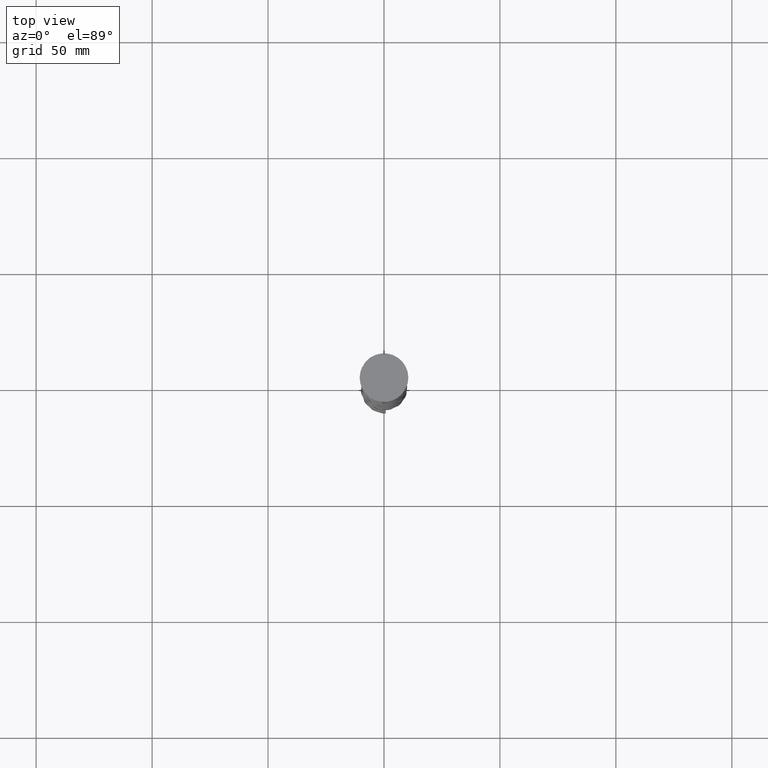
[diagram: clean part render]
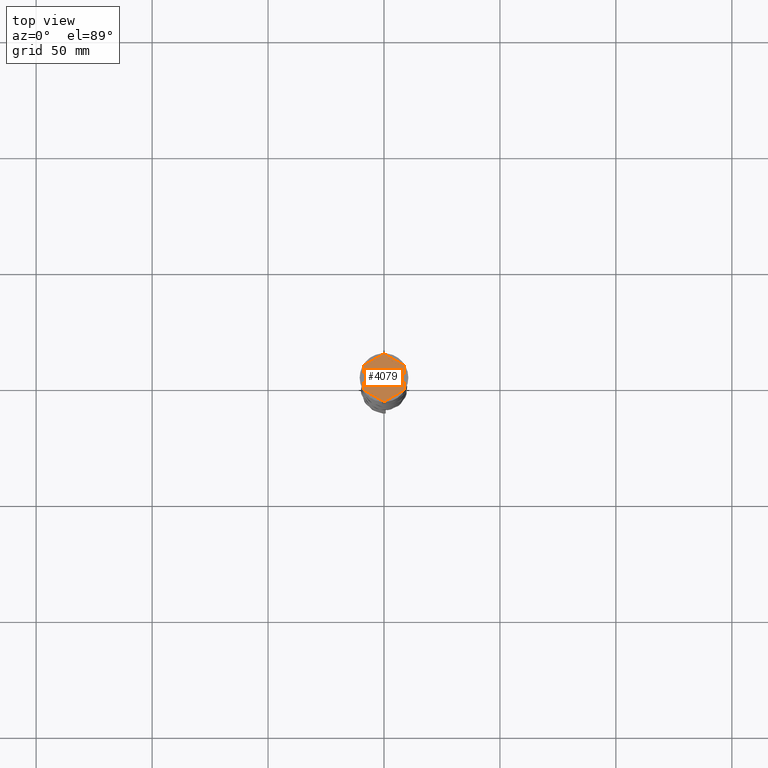
[diagram: same view with one face highlighted and labeled with its STEP entity id]
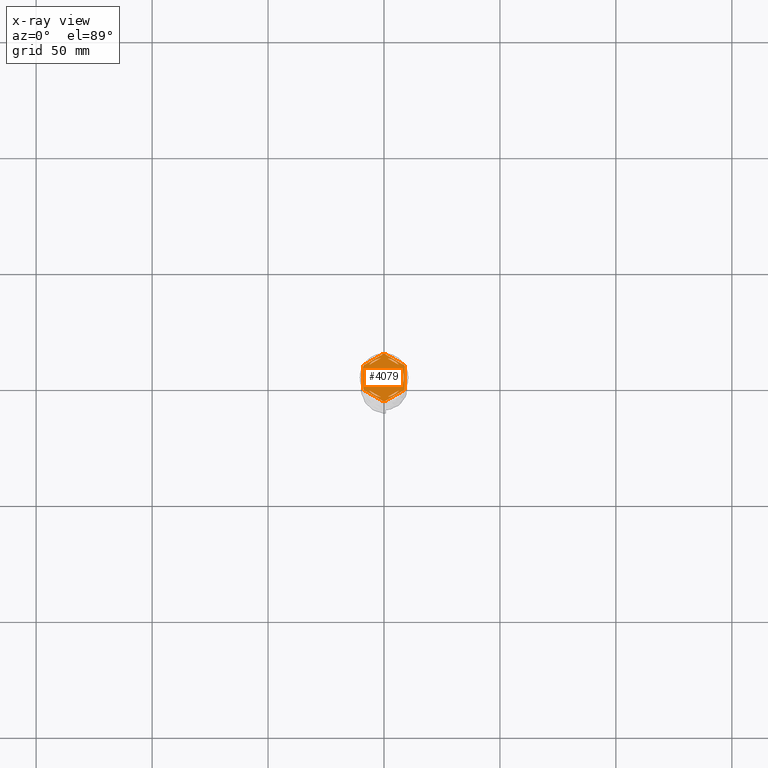
[diagram: x-ray of the same camera — body ghosted, the highlighted face saturated]
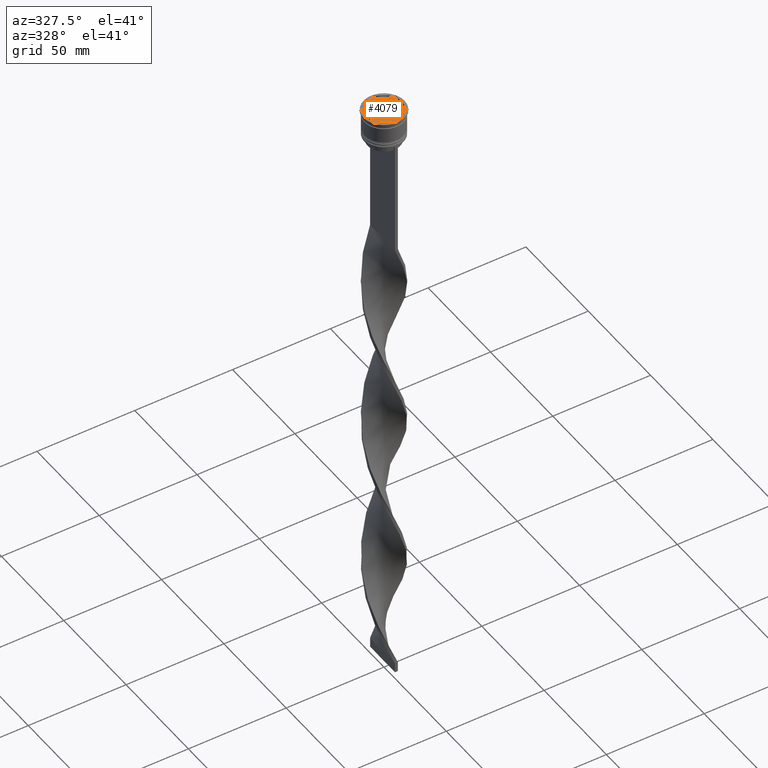
[diagram: same view with one face highlighted and labeled with its STEP entity id]
A machine part, top view. The second image highlights one B-rep face of the part: STEP entity #4079.
The next image is the same camera in x-ray: the body ghosted, the highlighted face saturated — about 0% of this face is hidden behind the body in this view.
A second angle (auxiliary view) of the same face is appended — the face is thin or edge-on in the first view.
In plain terms, the highlighted planar face has unit normal (0, 0, 1).
Its self-contained STEP definition (entity closure, byte-faithful):
#21 = ORIENTED_EDGE ( 'NONE', *, *, #1350, .F. ) ;
#24 = DIRECTION ( 'NONE',  ( -0.8660254037844385966, -0.5000000000000001110, 0.000000000000000000 ) ) ;
#26 = ORIENTED_EDGE ( 'NONE', *, *, #697, .F. ) ;
#60 = AXIS2_PLACEMENT_3D ( 'NONE', #3711, #1331, #3034 ) ;
#91 = DIRECTION ( 'NONE',  ( -0.000000000000000000, -0.000000000000000000, -1.000000000000000000 ) ) ;
#121 = FACE_BOUND ( 'NONE', #2989, .T. ) ;
#135 = VERTEX_POINT ( 'NONE', #1233 ) ;
#139 = CIRCLE ( 'NONE', #1285, 10.19999999999999574 ) ;
#163 = ORIENTED_EDGE ( 'NONE', *, *, #886, .F. ) ;
#171 = VERTEX_POINT ( 'NONE', #4133 ) ;
#228 = CARTESIAN_POINT ( 'NONE',  ( -6.487468592766552078, -5.492062568641001619, -1.000000000000000888 ) ) ;
#241 = CARTESIAN_POINT ( 'NONE',  ( 0.000000000000000000, 0.000000000000000000, -1.000000000000000000 ) ) ;
#244 = DIRECTION ( 'NONE',  ( -0.000000000000000000, -0.000000000000000000, -1.000000000000000000 ) ) ;
#248 = ORIENTED_EDGE ( 'NONE', *, *, #1683, .F. ) ;
#310 = VERTEX_POINT ( 'NONE', #4266 ) ;
#343 = DIRECTION ( 'NONE',  ( -0.8660254037844385966, 0.4999999999999999445, 0.000000000000000000 ) ) ;
#354 = VERTEX_POINT ( 'NONE', #2980 ) ;
#403 = CIRCLE ( 'NONE', #3729, 10.19999999999999574 ) ;
#405 = CARTESIAN_POINT ( 'NONE',  ( 6.487468592766552078, 5.492062568641001619, -1.000000000000000888 ) ) ;
#426 = EDGE_LOOP ( 'NONE', ( #2476, #26, #3744, #4236, #693, #2137, #2241, #3814, #1522, #3776, #2859, #3353 ) ) ;
#438 = CARTESIAN_POINT ( 'NONE',  ( 2.607697573705103160E-15, -10.39230484541326405, -1.000000000000000000 ) ) ;
#444 = DIRECTION ( 'NONE',  ( 0.8660254037844385966, -0.4999999999999999445, 0.000000000000000000 ) ) ;
#472 = LINE ( 'NONE', #4080, #3864 ) ;
#519 = CARTESIAN_POINT ( 'NONE',  ( 0.000000000000000000, 0.000000000000000000, -1.000000000000000000 ) ) ;
#520 = EDGE_LOOP ( 'NONE', ( #2803, #3248, #248 ) ) ;
#527 = EDGE_CURVE ( 'NONE', #871, #556, #4274, .T. ) ;
#556 = VERTEX_POINT ( 'NONE', #3700 ) ;
#560 = DIRECTION ( 'NONE',  ( 0.000000000000000000, 0.000000000000000000, 1.000000000000000000 ) ) ;
#609 = VERTEX_POINT ( 'NONE', #405 ) ;
#639 = CARTESIAN_POINT ( 'NONE',  ( -8.656921938165295316, -5.394228634059957450, -1.000000000000000000 ) ) ;
#641 = CARTESIAN_POINT ( 'NONE',  ( -8.000000000000000000, -4.618802153517006737, -1.000000000000000888 ) ) ;
#693 = ORIENTED_EDGE ( 'NONE', *, *, #2814, .T. ) ;
#697 = EDGE_CURVE ( 'NONE', #3857, #2795, #3229, .T. ) ;
#707 = VERTEX_POINT ( 'NONE', #3457 ) ;
#723 = CARTESIAN_POINT ( 'NONE',  ( 7.999999999999998224, -4.618802153517008513, -1.000000000000000888 ) ) ;
#729 = CARTESIAN_POINT ( 'NONE',  ( 8.000000000000000000, 4.618802153517006737, -1.000000000000000888 ) ) ;
#732 = VERTEX_POINT ( 'NONE', #1157 ) ;
#743 = VECTOR ( 'NONE', #444, 1000.000000000000114 ) ;
#746 = LINE ( 'NONE', #1083, #3008 ) ;
#769 = CARTESIAN_POINT ( 'NONE',  ( 8.673617379884035472E-16, 9.237604307034013473, -1.000000000000000888 ) ) ;
#778 = CARTESIAN_POINT ( 'NONE',  ( 0.000000000000000000, 0.000000000000000000, -1.000000000000000000 ) ) ;
#792 = ORIENTED_EDGE ( 'NONE', *, *, #2624, .F. ) ;
#809 = FACE_OUTER_BOUND ( 'NONE', #426, .T. ) ;
#844 = DIRECTION ( 'NONE',  ( -0.000000000000000000, -0.000000000000000000, -1.000000000000000000 ) ) ;
#871 = VERTEX_POINT ( 'NONE', #1403 ) ;
#886 = EDGE_CURVE ( 'NONE', #3006, #609, #2079, .T. ) ;
#890 = CARTESIAN_POINT ( 'NONE',  ( 6.487468592766547637, -5.492062568641006060, -1.000000000000000888 ) ) ;
#899 = CARTESIAN_POINT ( 'NONE',  ( 0.000000000000000000, 0.000000000000000000, -1.000000000000000000 ) ) ;
#911 = EDGE_CURVE ( 'NONE', #3598, #871, #4129, .T. ) ;
#959 = DIRECTION ( 'NONE',  ( 0.000000000000000000, 1.000000000000000000, 0.000000000000000000 ) ) ;
#1017 = EDGE_CURVE ( 'NONE', #707, #354, #3024, .T. ) ;
#1059 = DIRECTION ( 'NONE',  ( 0.000000000000000000, 0.000000000000000000, 1.000000000000000000 ) ) ;
#1061 = VECTOR ( 'NONE', #3062, 1000.000000000000000 ) ;
#1063 = EDGE_CURVE ( 'NONE', #2377, #2563, #3635, .T. ) ;
#1073 = CARTESIAN_POINT ( 'NONE',  ( 0.000000000000000000, 0.000000000000000000, -1.000000000000000000 ) ) ;
#1083 = CARTESIAN_POINT ( 'NONE',  ( -9.000000000000001776, 5.196152422706632024, -1.000000000000000000 ) ) ;
#1096 = DIRECTION ( 'NONE',  ( 1.000000000000000000, 0.000000000000000000, 0.000000000000000000 ) ) ;
#1097 = DIRECTION ( 'NONE',  ( -0.000000000000000000, -0.000000000000000000, -1.000000000000000000 ) ) ;
#1110 = DIRECTION ( 'NONE',  ( 0.000000000000000000, 0.000000000000000000, 1.000000000000000000 ) ) ;
#1125 = FACE_BOUND ( 'NONE', #1428, .T. ) ;
#1127 = DIRECTION ( 'NONE',  ( -0.8660254037844385966, 0.5000000000000000000, 0.000000000000000000 ) ) ;
#1138 = CARTESIAN_POINT ( 'NONE',  ( -9.000000000000001776, -5.196152422706632912, -1.000000000000000000 ) ) ;
#1148 = VECTOR ( 'NONE', #343, 1000.000000000000114 ) ;
#1157 = CARTESIAN_POINT ( 'NONE',  ( 1.512531407233452363, -8.364343891910017703, -1.000000000000000888 ) ) ;
#1188 = DIRECTION ( 'NONE',  ( 0.000000000000000000, 0.000000000000000000, 1.000000000000000000 ) ) ;
#1190 = CIRCLE ( 'NONE', #1667, 10.19999999999999574 ) ;
#1193 = VECTOR ( 'NONE', #959, 1000.000000000000000 ) ;
#1211 = VERTEX_POINT ( 'NONE', #2668 ) ;
#1233 = CARTESIAN_POINT ( 'NONE',  ( -8.656921938165297092, 5.394228634059953009, -1.000000000000000000 ) ) ;
#1285 = AXIS2_PLACEMENT_3D ( 'NONE', #1751, #844, #3099 ) ;
#1331 = DIRECTION ( 'NONE',  ( 0.000000000000000000, 0.000000000000000000, 1.000000000000000000 ) ) ;
#1350 = EDGE_CURVE ( 'NONE', #732, #2622, #2185, .T. ) ;
#1367 = CARTESIAN_POINT ( 'NONE',  ( 9.000000000000001776, 4.799999999999988276, -1.000000000000000000 ) ) ;
#1370 = ORIENTED_EDGE ( 'NONE', *, *, #3564, .F. ) ;
#1372 = EDGE_CURVE ( 'NONE', #3857, #354, #1503, .T. ) ;
#1374 = VERTEX_POINT ( 'NONE', #3141 ) ;
#1382 = DIRECTION ( 'NONE',  ( 1.000000000000000000, 0.000000000000000000, 0.000000000000000000 ) ) ;
#1391 = DIRECTION ( 'NONE',  ( 0.8660254037844387076, -0.4999999999999997224, 0.000000000000000000 ) ) ;
#1392 = CIRCLE ( 'NONE', #3835, 8.500000000000000000 ) ;
#1398 = LINE ( 'NONE', #438, #1865 ) ;
#1403 = CARTESIAN_POINT ( 'NONE',  ( -8.000000000000000000, 2.872281323269016085, -1.000000000000000888 ) ) ;
#1416 = AXIS2_PLACEMENT_3D ( 'NONE', #2140, #3805, #2466 ) ;
#1419 = FACE_BOUND ( 'NONE', #3599, .T. ) ;
#1425 = CARTESIAN_POINT ( 'NONE',  ( 0.000000000000000000, 0.000000000000000000, -1.000000000000000000 ) ) ;
#1428 = EDGE_LOOP ( 'NONE', ( #3070, #163 ) ) ;
#1441 = DIRECTION ( 'NONE',  ( 1.000000000000000000, 0.000000000000000000, 0.000000000000000000 ) ) ;
#1461 = CIRCLE ( 'NONE', #4109, 8.500000000000000000 ) ;
#1486 = VECTOR ( 'NONE', #1127, 1000.000000000000227 ) ;
#1503 = LINE ( 'NONE', #3119, #1486 ) ;
#1509 = DIRECTION ( 'NONE',  ( 0.000000000000000000, 0.000000000000000000, 1.000000000000000000 ) ) ;
#1517 = CARTESIAN_POINT ( 'NONE',  ( -1.512531407233448366, -8.364343891910017703, -1.000000000000000888 ) ) ;
#1522 = ORIENTED_EDGE ( 'NONE', *, *, #1925, .T. ) ;
#1525 = ORIENTED_EDGE ( 'NONE', *, *, #3535, .F. ) ;
#1589 = CARTESIAN_POINT ( 'NONE',  ( -9.000000000000001776, 4.799999999999988276, -1.000000000000000000 ) ) ;
#1667 = AXIS2_PLACEMENT_3D ( 'NONE', #778, #3833, #1096 ) ;
#1683 = EDGE_CURVE ( 'NONE', #556, #3598, #3792, .T. ) ;
#1717 = LINE ( 'NONE', #769, #2367 ) ;
#1736 = DIRECTION ( 'NONE',  ( 0.8660254037844385966, 0.5000000000000001110, 0.000000000000000000 ) ) ;
#1745 = CARTESIAN_POINT ( 'NONE',  ( 8.656921938165297092, -5.394228634059953009, -1.000000000000000000 ) ) ;
#1749 = CARTESIAN_POINT ( 'NONE',  ( 1.512531407233448366, 8.364343891910017703, -1.000000000000000888 ) ) ;
#1751 = CARTESIAN_POINT ( 'NONE',  ( 0.000000000000000000, 0.000000000000000000, -1.000000000000000000 ) ) ;
#1820 = AXIS2_PLACEMENT_3D ( 'NONE', #3072, #91, #2445 ) ;
#1865 = VECTOR ( 'NONE', #1736, 1000.000000000000000 ) ;
#1893 = EDGE_CURVE ( 'NONE', #2188, #171, #403, .T. ) ;
#1925 = EDGE_CURVE ( 'NONE', #2188, #1211, #2129, .T. ) ;
#1956 = CARTESIAN_POINT ( 'NONE',  ( 8.656921938165297092, 5.394228634059953897, -1.000000000000000000 ) ) ;
#1961 = VERTEX_POINT ( 'NONE', #3131 ) ;
#1987 = EDGE_CURVE ( 'NONE', #1961, #1211, #139, .T. ) ;
#2023 = AXIS2_PLACEMENT_3D ( 'NONE', #3164, #244, #2853 ) ;
#2027 = FACE_BOUND ( 'NONE', #2937, .T. ) ;
#2047 = EDGE_CURVE ( 'NONE', #2622, #732, #472, .T. ) ;
#2052 = DIRECTION ( 'NONE',  ( 0.000000000000000000, 0.000000000000000000, 1.000000000000000000 ) ) ;
#2068 = CARTESIAN_POINT ( 'NONE',  ( 0.000000000000000000, 0.000000000000000000, -1.000000000000000000 ) ) ;
#2079 = LINE ( 'NONE', #729, #743 ) ;
#2088 = DIRECTION ( 'NONE',  ( -0.8660254037844387076, -0.4999999999999998335, 0.000000000000000000 ) ) ;
#2089 = VECTOR ( 'NONE', #24, 1000.000000000000000 ) ;
#2091 = CIRCLE ( 'NONE', #2503, 8.500000000000000000 ) ;
#2103 = ORIENTED_EDGE ( 'NONE', *, *, #2047, .F. ) ;
#2129 = LINE ( 'NONE', #1138, #4284 ) ;
#2137 = ORIENTED_EDGE ( 'NONE', *, *, #2868, .F. ) ;
#2140 = CARTESIAN_POINT ( 'NONE',  ( 0.000000000000000000, 0.000000000000000000, -1.000000000000000000 ) ) ;
#2185 = CIRCLE ( 'NONE', #3581, 8.500000000000000000 ) ;
#2188 = VERTEX_POINT ( 'NONE', #639 ) ;
#2241 = ORIENTED_EDGE ( 'NONE', *, *, #4044, .T. ) ;
#2323 = ORIENTED_EDGE ( 'NONE', *, *, #1063, .F. ) ;
#2351 = CARTESIAN_POINT ( 'NONE',  ( -8.000000000000000000, -2.872281323269016085, -1.000000000000000888 ) ) ;
#2367 = VECTOR ( 'NONE', #2994, 1000.000000000000114 ) ;
#2373 = FACE_BOUND ( 'NONE', #3990, .T. ) ;
#2377 = VERTEX_POINT ( 'NONE', #1517 ) ;
#2381 = AXIS2_PLACEMENT_3D ( 'NONE', #1425, #1110, #1382 ) ;
#2415 = DIRECTION ( 'NONE',  ( 1.000000000000000000, 0.000000000000000000, 0.000000000000000000 ) ) ;
#2424 = AXIS2_PLACEMENT_3D ( 'NONE', #241, #560, #2872 ) ;
#2433 = DIRECTION ( 'NONE',  ( 1.000000000000000000, 0.000000000000000000, -0.000000000000000000 ) ) ;
#2445 = DIRECTION ( 'NONE',  ( 1.000000000000000000, 0.000000000000000000, 0.000000000000000000 ) ) ;
#2466 = DIRECTION ( 'NONE',  ( 1.000000000000000000, 1.598721155460225418E-14, 0.000000000000000000 ) ) ;
#2476 = ORIENTED_EDGE ( 'NONE', *, *, #3291, .T. ) ;
#2503 = AXIS2_PLACEMENT_3D ( 'NONE', #2702, #1059, #2415 ) ;
#2551 = VERTEX_POINT ( 'NONE', #3867 ) ;
#2563 = VERTEX_POINT ( 'NONE', #228 ) ;
#2622 = VERTEX_POINT ( 'NONE', #890 ) ;
#2624 = EDGE_CURVE ( 'NONE', #2551, #310, #3896, .T. ) ;
#2625 = LINE ( 'NONE', #2988, #2089 ) ;
#2649 = CIRCLE ( 'NONE', #2023, 10.19999999999999574 ) ;
#2668 = CARTESIAN_POINT ( 'NONE',  ( -0.3430780618347024080, -10.19422863405994306, -1.000000000000000000 ) ) ;
#2702 = CARTESIAN_POINT ( 'NONE',  ( 0.000000000000000000, 0.000000000000000000, -1.000000000000000000 ) ) ;
#2716 = CARTESIAN_POINT ( 'NONE',  ( 9.000000000000001776, -4.799999999999988276, -1.000000000000000000 ) ) ;
#2723 = LINE ( 'NONE', #723, #1061 ) ;
#2747 = CARTESIAN_POINT ( 'NONE',  ( 0.000000000000000000, 0.000000000000000000, -1.000000000000000000 ) ) ;
#2748 = CARTESIAN_POINT ( 'NONE',  ( 8.000000000000000000, 2.872281323269014752, -1.000000000000000888 ) ) ;
#2795 = VERTEX_POINT ( 'NONE', #1367 ) ;
#2803 = ORIENTED_EDGE ( 'NONE', *, *, #527, .F. ) ;
#2814 = EDGE_CURVE ( 'NONE', #707, #135, #2625, .T. ) ;
#2853 = DIRECTION ( 'NONE',  ( 1.000000000000000000, 8.881784197001252323E-16, 0.000000000000000000 ) ) ;
#2855 = VERTEX_POINT ( 'NONE', #2716 ) ;
#2859 = ORIENTED_EDGE ( 'NONE', *, *, #3681, .T. ) ;
#2868 = EDGE_CURVE ( 'NONE', #3358, #135, #1190, .T. ) ;
#2872 = DIRECTION ( 'NONE',  ( 1.000000000000000000, 0.000000000000000000, 0.000000000000000000 ) ) ;
#2937 = EDGE_LOOP ( 'NONE', ( #1370, #2323 ) ) ;
#2980 = CARTESIAN_POINT ( 'NONE',  ( 0.3430780618347050170, 10.19422863405994306, -1.000000000000000000 ) ) ;
#2988 = CARTESIAN_POINT ( 'NONE',  ( 0.000000000000000000, 10.39230484541326582, -1.000000000000000000 ) ) ;
#2989 = EDGE_LOOP ( 'NONE', ( #21, #2103 ) ) ;
#2994 = DIRECTION ( 'NONE',  ( 0.8660254037844384856, 0.5000000000000003331, -0.000000000000000000 ) ) ;
#3006 = VERTEX_POINT ( 'NONE', #1749 ) ;
#3008 = VECTOR ( 'NONE', #3061, 1000.000000000000000 ) ;
#3024 = CIRCLE ( 'NONE', #1416, 10.19999999999999574 ) ;
#3034 = DIRECTION ( 'NONE',  ( 1.000000000000000000, 0.000000000000000000, 0.000000000000000000 ) ) ;
#3061 = DIRECTION ( 'NONE',  ( 0.000000000000000000, -1.000000000000000000, 0.000000000000000000 ) ) ;
#3062 = DIRECTION ( 'NONE',  ( -1.877893248421449036E-16, -1.000000000000000000, 0.000000000000000000 ) ) ;
#3070 = ORIENTED_EDGE ( 'NONE', *, *, #3130, .F. ) ;
#3072 = CARTESIAN_POINT ( 'NONE',  ( 0.000000000000000000, 0.000000000000000000, -1.000000000000000000 ) ) ;
#3089 = CARTESIAN_POINT ( 'NONE',  ( -8.000000000000000000, 4.618802153517004072, -1.000000000000000888 ) ) ;
#3099 = DIRECTION ( 'NONE',  ( 1.000000000000000000, 0.000000000000000000, 0.000000000000000000 ) ) ;
#3119 = CARTESIAN_POINT ( 'NONE',  ( 9.000000000000001776, 5.196152422706632912, -1.000000000000000000 ) ) ;
#3130 = EDGE_CURVE ( 'NONE', #609, #3006, #1461, .T. ) ;
#3131 = CARTESIAN_POINT ( 'NONE',  ( 0.3430780618347059052, -10.19422863405994306, -1.000000000000000000 ) ) ;
#3139 = VERTEX_POINT ( 'NONE', #1745 ) ;
#3141 = CARTESIAN_POINT ( 'NONE',  ( 8.000000000000000000, -2.872281323269017417, -1.000000000000000888 ) ) ;
#3164 = CARTESIAN_POINT ( 'NONE',  ( 0.000000000000000000, 0.000000000000000000, -1.000000000000000000 ) ) ;
#3213 = DIRECTION ( 'NONE',  ( 1.000000000000000000, 0.000000000000000000, 0.000000000000000000 ) ) ;
#3229 = CIRCLE ( 'NONE', #1820, 10.19999999999999574 ) ;
#3244 = EDGE_CURVE ( 'NONE', #1374, #3512, #1392, .T. ) ;
#3248 = ORIENTED_EDGE ( 'NONE', *, *, #911, .F. ) ;
#3291 = EDGE_CURVE ( 'NONE', #2855, #2795, #4262, .T. ) ;
#3353 = ORIENTED_EDGE ( 'NONE', *, *, #4202, .F. ) ;
#3358 = VERTEX_POINT ( 'NONE', #1589 ) ;
#3448 = DIRECTION ( 'NONE',  ( 0.000000000000000000, 0.000000000000000000, 1.000000000000000000 ) ) ;
#3457 = CARTESIAN_POINT ( 'NONE',  ( -0.3430780618347059052, 10.19422863405994306, -1.000000000000000000 ) ) ;
#3512 = VERTEX_POINT ( 'NONE', #2748 ) ;
#3535 = EDGE_CURVE ( 'NONE', #3512, #1374, #2723, .T. ) ;
#3564 = EDGE_CURVE ( 'NONE', #2563, #2377, #2091, .T. ) ;
#3581 = AXIS2_PLACEMENT_3D ( 'NONE', #519, #3448, #1441 ) ;
#3598 = VERTEX_POINT ( 'NONE', #2351 ) ;
#3599 = EDGE_LOOP ( 'NONE', ( #792, #4288 ) ) ;
#3603 = EDGE_CURVE ( 'NONE', #310, #2551, #1717, .T. ) ;
#3635 = LINE ( 'NONE', #641, #1148 ) ;
#3643 = ORIENTED_EDGE ( 'NONE', *, *, #3244, .F. ) ;
#3681 = EDGE_CURVE ( 'NONE', #1961, #3139, #1398, .T. ) ;
#3700 = CARTESIAN_POINT ( 'NONE',  ( -8.500000000000000000, 0.000000000000000000, -1.000000000000000000 ) ) ;
#3711 = CARTESIAN_POINT ( 'NONE',  ( 0.000000000000000000, 0.000000000000000000, -1.000000000000000000 ) ) ;
#3729 = AXIS2_PLACEMENT_3D ( 'NONE', #2068, #1097, #3794 ) ;
#3737 = PLANE ( 'NONE',  #3837 ) ;
#3744 = ORIENTED_EDGE ( 'NONE', *, *, #1372, .T. ) ;
#3747 = DIRECTION ( 'NONE',  ( 1.000000000000000000, 0.000000000000000000, 0.000000000000000000 ) ) ;
#3776 = ORIENTED_EDGE ( 'NONE', *, *, #1987, .F. ) ;
#3779 = FACE_BOUND ( 'NONE', #520, .T. ) ;
#3792 = CIRCLE ( 'NONE', #60, 8.500000000000000000 ) ;
#3794 = DIRECTION ( 'NONE',  ( 1.000000000000000000, 0.000000000000000000, 0.000000000000000000 ) ) ;
#3805 = DIRECTION ( 'NONE',  ( -0.000000000000000000, -0.000000000000000000, -1.000000000000000000 ) ) ;
#3814 = ORIENTED_EDGE ( 'NONE', *, *, #1893, .F. ) ;
#3833 = DIRECTION ( 'NONE',  ( -0.000000000000000000, -0.000000000000000000, -1.000000000000000000 ) ) ;
#3835 = AXIS2_PLACEMENT_3D ( 'NONE', #899, #1509, #3213 ) ;
#3837 = AXIS2_PLACEMENT_3D ( 'NONE', #2747, #2052, #2433 ) ;
#3857 = VERTEX_POINT ( 'NONE', #1956 ) ;
#3864 = VECTOR ( 'NONE', #2088, 1000.000000000000114 ) ;
#3867 = CARTESIAN_POINT ( 'NONE',  ( -1.512531407233451475, 8.364343891910017703, -1.000000000000000888 ) ) ;
#3896 = CIRCLE ( 'NONE', #2424, 8.500000000000000000 ) ;
#3990 = EDGE_LOOP ( 'NONE', ( #3643, #1525 ) ) ;
#3997 = VECTOR ( 'NONE', #4090, 1000.000000000000000 ) ;
#4044 = EDGE_CURVE ( 'NONE', #3358, #171, #746, .T. ) ;
#4079 = ADVANCED_FACE ( 'NONE', ( #1125, #2373, #121, #2027, #3779, #1419, #809 ), #3737, .T. ) ;
#4080 = CARTESIAN_POINT ( 'NONE',  ( -8.673617379884035472E-16, -9.237604307034013473, -1.000000000000000888 ) ) ;
#4090 = DIRECTION ( 'NONE',  ( 0.000000000000000000, 1.000000000000000000, 0.000000000000000000 ) ) ;
#4109 = AXIS2_PLACEMENT_3D ( 'NONE', #1073, #1188, #3747 ) ;
#4129 = LINE ( 'NONE', #3089, #3997 ) ;
#4133 = CARTESIAN_POINT ( 'NONE',  ( -9.000000000000001776, -4.799999999999988276, -1.000000000000000000 ) ) ;
#4202 = EDGE_CURVE ( 'NONE', #2855, #3139, #2649, .T. ) ;
#4221 = CARTESIAN_POINT ( 'NONE',  ( 9.000000000000001776, -5.196152422706632024, -1.000000000000000000 ) ) ;
#4236 = ORIENTED_EDGE ( 'NONE', *, *, #1017, .F. ) ;
#4262 = LINE ( 'NONE', #4221, #1193 ) ;
#4266 = CARTESIAN_POINT ( 'NONE',  ( -6.487468592766553854, 5.492062568640999842, -1.000000000000000888 ) ) ;
#4274 = CIRCLE ( 'NONE', #2381, 8.500000000000000000 ) ;
#4284 = VECTOR ( 'NONE', #1391, 1000.000000000000114 ) ;
#4288 = ORIENTED_EDGE ( 'NONE', *, *, #3603, .F. ) ;